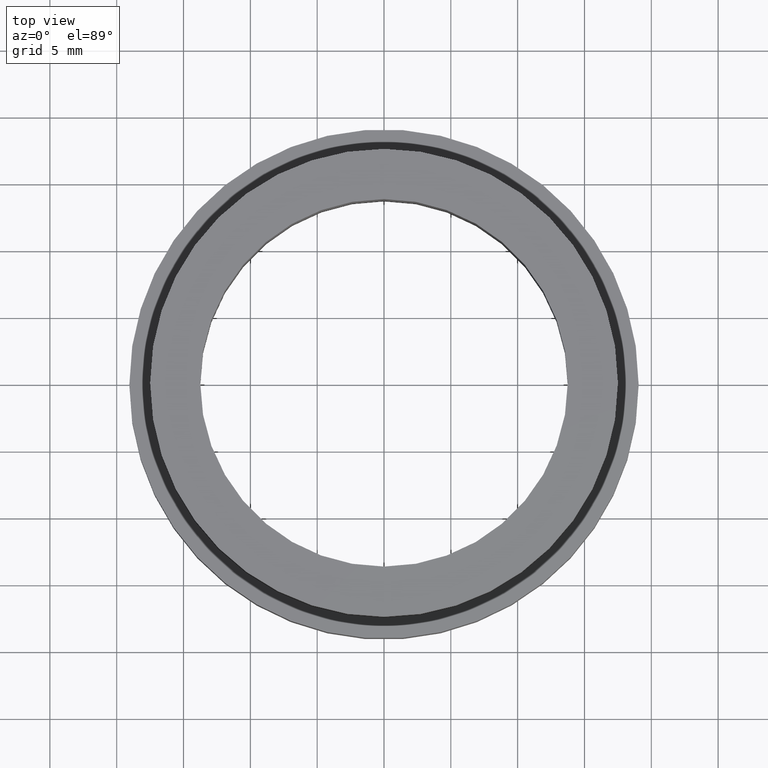
[diagram: clean part render]
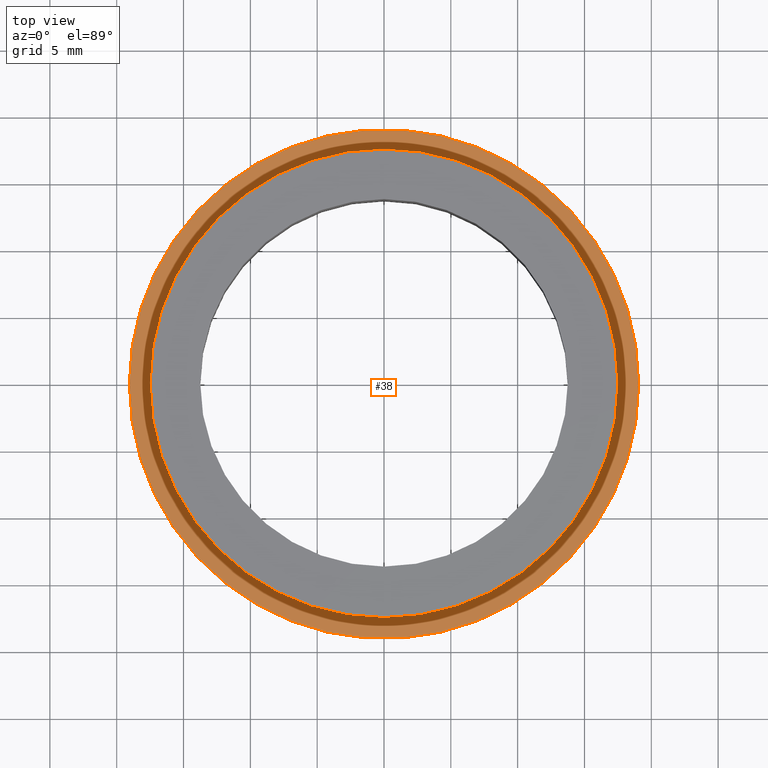
[diagram: same view with one face highlighted and labeled with its STEP entity id]
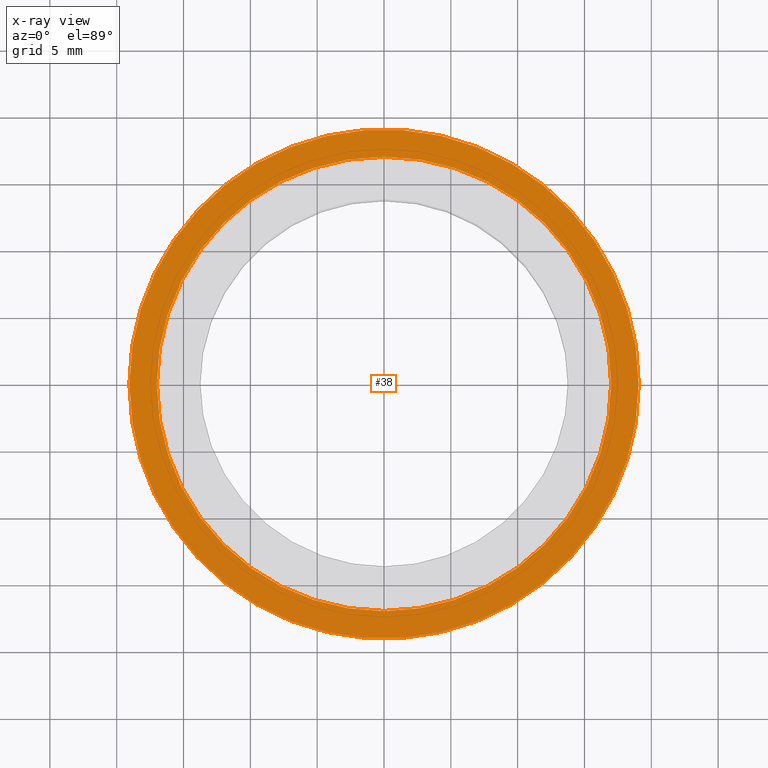
[diagram: x-ray of the same camera — body ghosted, the highlighted face saturated]
A machine part, top view. The second image highlights one B-rep face of the part: STEP entity #38.
The next image is the same camera in x-ray: the body ghosted, the highlighted face saturated — about 0% of this face is hidden behind the body in this view.
In plain terms, the highlighted planar face has unit normal (-0, 0, -1).
Its self-contained STEP definition (entity closure, byte-faithful):
#4 = CARTESIAN_POINT ( 'NONE',  ( 17.00000000000000400, 2.081899558550500700E-015, -5.000000000000000900 ) ) ;
#5 = DIRECTION ( 'NONE',  ( -0.0000000000000000000, 0.0000000000000000000, -1.000000000000000000 ) ) ;
#15 = AXIS2_PLACEMENT_3D ( 'NONE', #136, #230, #246 ) ;
#20 = CARTESIAN_POINT ( 'NONE',  ( 17.00000000000000400, 0.0000000000000000000, -5.000000000000000000 ) ) ;
#29 = EDGE_CURVE ( 'NONE', #339, #328, #33, .T. ) ;
#31 = EDGE_CURVE ( 'NONE', #67, #261, #192, .T. ) ;
#33 = CIRCLE ( 'NONE', #255, 17.00000000000000400 ) ;
#38 = ADVANCED_FACE ( 'NONE', ( #215, #154 ), #420, .F. ) ;
#58 = AXIS2_PLACEMENT_3D ( 'NONE', #291, #159, #161 ) ;
#67 = VERTEX_POINT ( 'NONE', #308 ) ;
#88 = CARTESIAN_POINT ( 'NONE',  ( -19.05000000000000100, 0.0000000000000000000, -5.000000000000000900 ) ) ;
#114 = ORIENTED_EDGE ( 'NONE', *, *, #427, .F. ) ;
#118 = ORIENTED_EDGE ( 'NONE', *, *, #279, .T. ) ;
#131 = CIRCLE ( 'NONE', #15, 19.05000000000000100 ) ;
#136 = CARTESIAN_POINT ( 'NONE',  ( 0.0000000000000000000, 0.0000000000000000000, -5.000000000000000900 ) ) ;
#141 = EDGE_LOOP ( 'NONE', ( #114, #225 ) ) ;
#143 = DIRECTION ( 'NONE',  ( -0.0000000000000000000, -0.0000000000000000000, -1.000000000000000000 ) ) ;
#154 = FACE_BOUND ( 'NONE', #232, .T. ) ;
#159 = DIRECTION ( 'NONE',  ( -0.0000000000000000000, -0.0000000000000000000, -1.000000000000000000 ) ) ;
#161 = DIRECTION ( 'NONE',  ( -1.000000000000000000, 0.0000000000000000000, 0.0000000000000000000 ) ) ;
#192 = CIRCLE ( 'NONE', #222, 19.05000000000000100 ) ;
#195 = CARTESIAN_POINT ( 'NONE',  ( 0.0000000000000000000, 0.0000000000000000000, -5.000000000000000900 ) ) ;
#199 = DIRECTION ( 'NONE',  ( -0.0000000000000000000, -0.0000000000000000000, -1.000000000000000000 ) ) ;
#209 = DIRECTION ( 'NONE',  ( -1.000000000000000000, 0.0000000000000000000, 0.0000000000000000000 ) ) ;
#213 = AXIS2_PLACEMENT_3D ( 'NONE', #20, #5, #403 ) ;
#215 = FACE_OUTER_BOUND ( 'NONE', #141, .T. ) ;
#216 = ORIENTED_EDGE ( 'NONE', *, *, #29, .T. ) ;
#217 = DIRECTION ( 'NONE',  ( -1.000000000000000000, 0.0000000000000000000, 0.0000000000000000000 ) ) ;
#222 = AXIS2_PLACEMENT_3D ( 'NONE', #195, #143, #209 ) ;
#225 = ORIENTED_EDGE ( 'NONE', *, *, #31, .F. ) ;
#230 = DIRECTION ( 'NONE',  ( -0.0000000000000000000, -0.0000000000000000000, -1.000000000000000000 ) ) ;
#232 = EDGE_LOOP ( 'NONE', ( #118, #216 ) ) ;
#246 = DIRECTION ( 'NONE',  ( -1.000000000000000000, 0.0000000000000000000, 0.0000000000000000000 ) ) ;
#248 = CARTESIAN_POINT ( 'NONE',  ( 0.0000000000000000000, 0.0000000000000000000, -5.000000000000000900 ) ) ;
#255 = AXIS2_PLACEMENT_3D ( 'NONE', #248, #199, #217 ) ;
#261 = VERTEX_POINT ( 'NONE', #88 ) ;
#279 = EDGE_CURVE ( 'NONE', #328, #339, #289, .T. ) ;
#288 = CARTESIAN_POINT ( 'NONE',  ( -17.00000000000000400, 0.0000000000000000000, -5.000000000000000900 ) ) ;
#289 = CIRCLE ( 'NONE', #58, 17.00000000000000400 ) ;
#291 = CARTESIAN_POINT ( 'NONE',  ( 0.0000000000000000000, 0.0000000000000000000, -5.000000000000000900 ) ) ;
#308 = CARTESIAN_POINT ( 'NONE',  ( 19.05000000000000100, 2.332952152375708000E-015, -5.000000000000000900 ) ) ;
#328 = VERTEX_POINT ( 'NONE', #288 ) ;
#339 = VERTEX_POINT ( 'NONE', #4 ) ;
#403 = DIRECTION ( 'NONE',  ( -1.000000000000000000, 0.0000000000000000000, 0.0000000000000000000 ) ) ;
#420 = PLANE ( 'NONE',  #213 ) ;
#427 = EDGE_CURVE ( 'NONE', #261, #67, #131, .T. ) ;